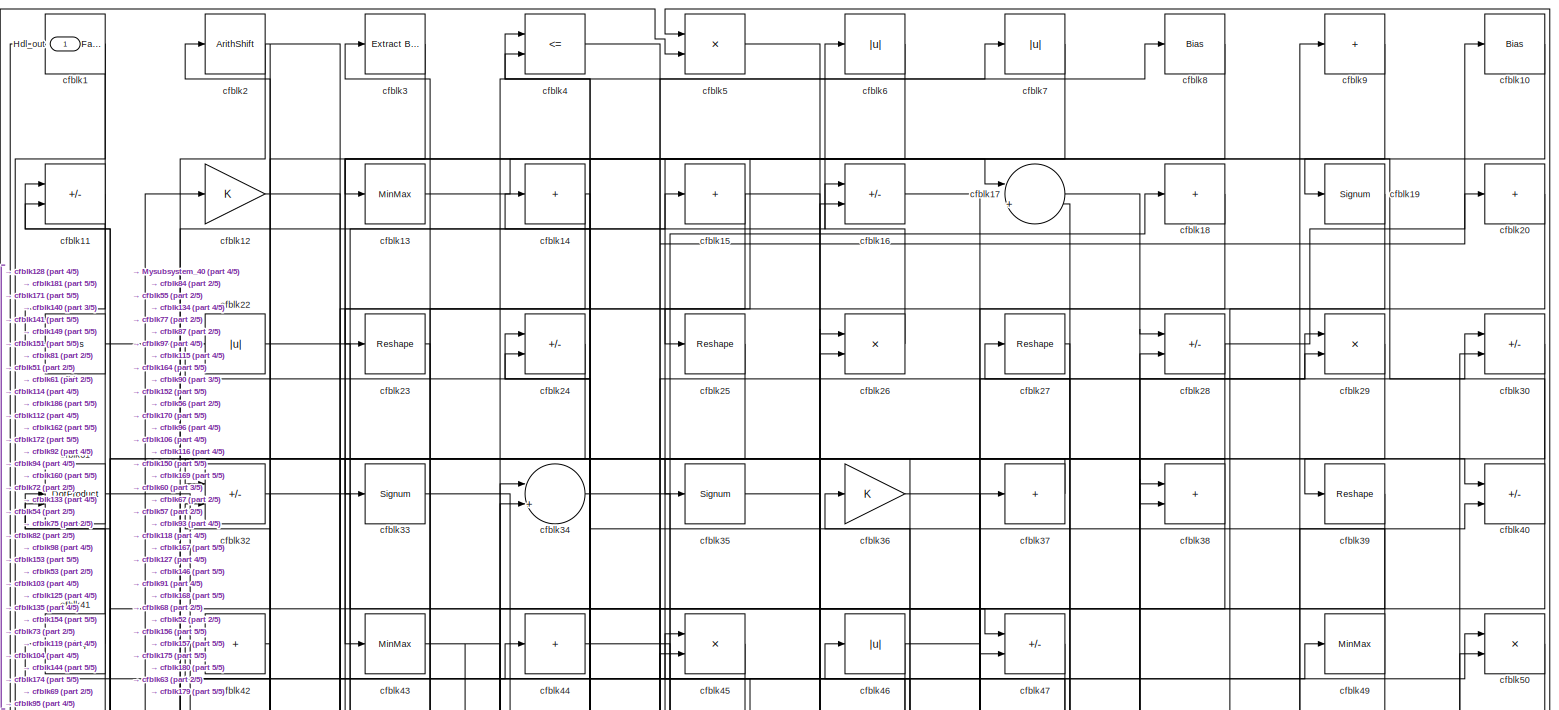
[diagram: root canvas - part 1/5, full width, top band]
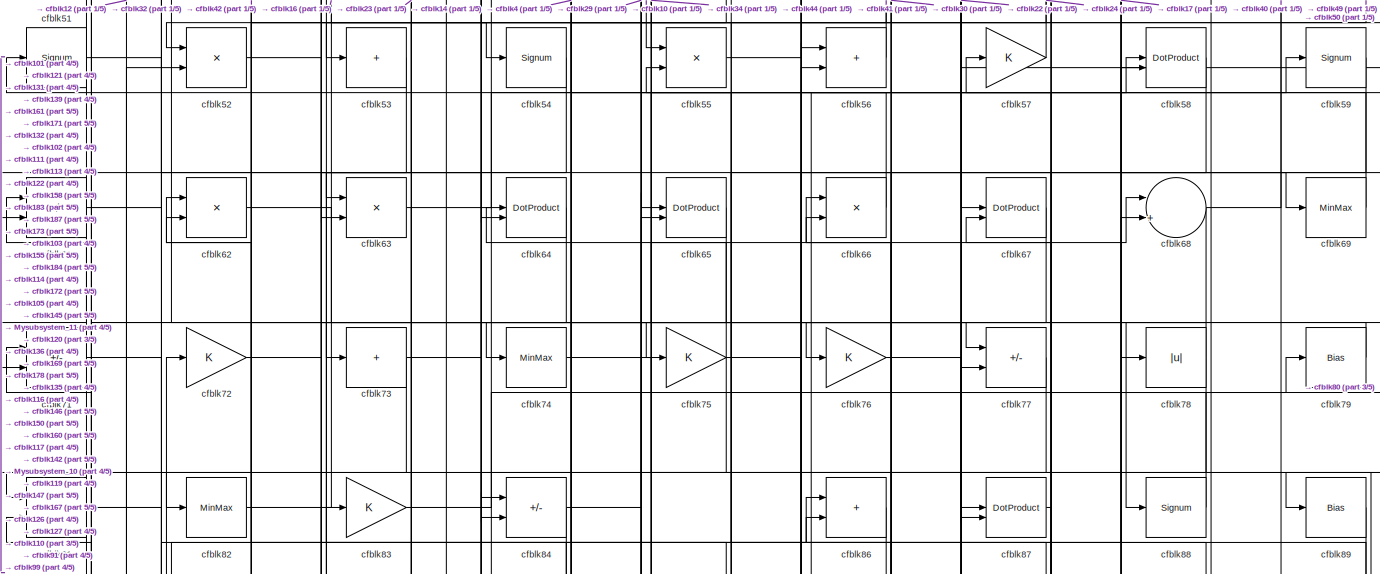
[diagram: root canvas - part 2/5, full width, middle band]
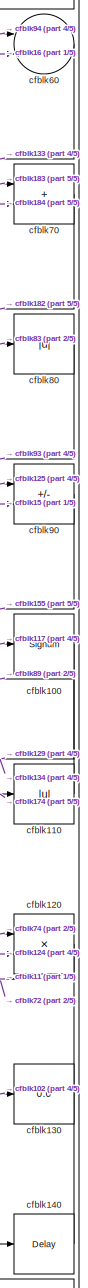
[diagram: root canvas - part 3/5, middle right region]
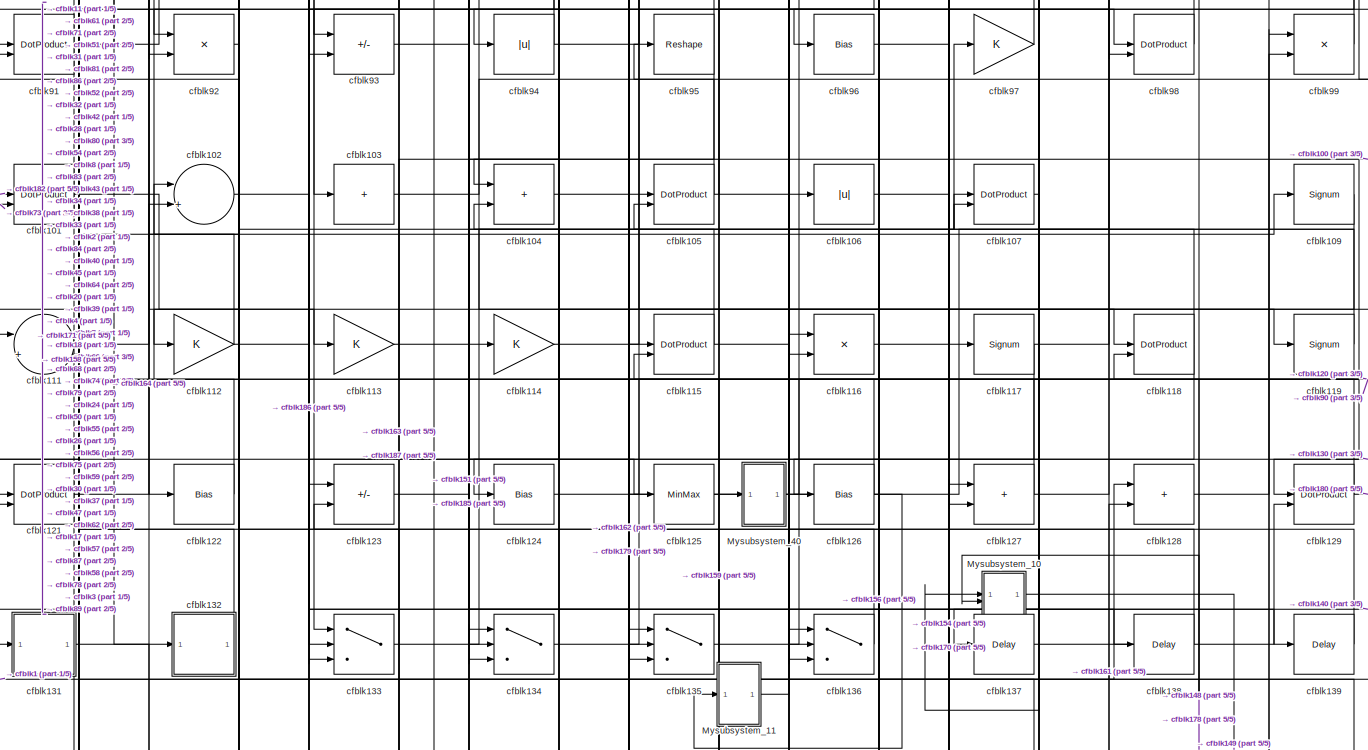
[diagram: root canvas - part 4/5, full width, middle band]
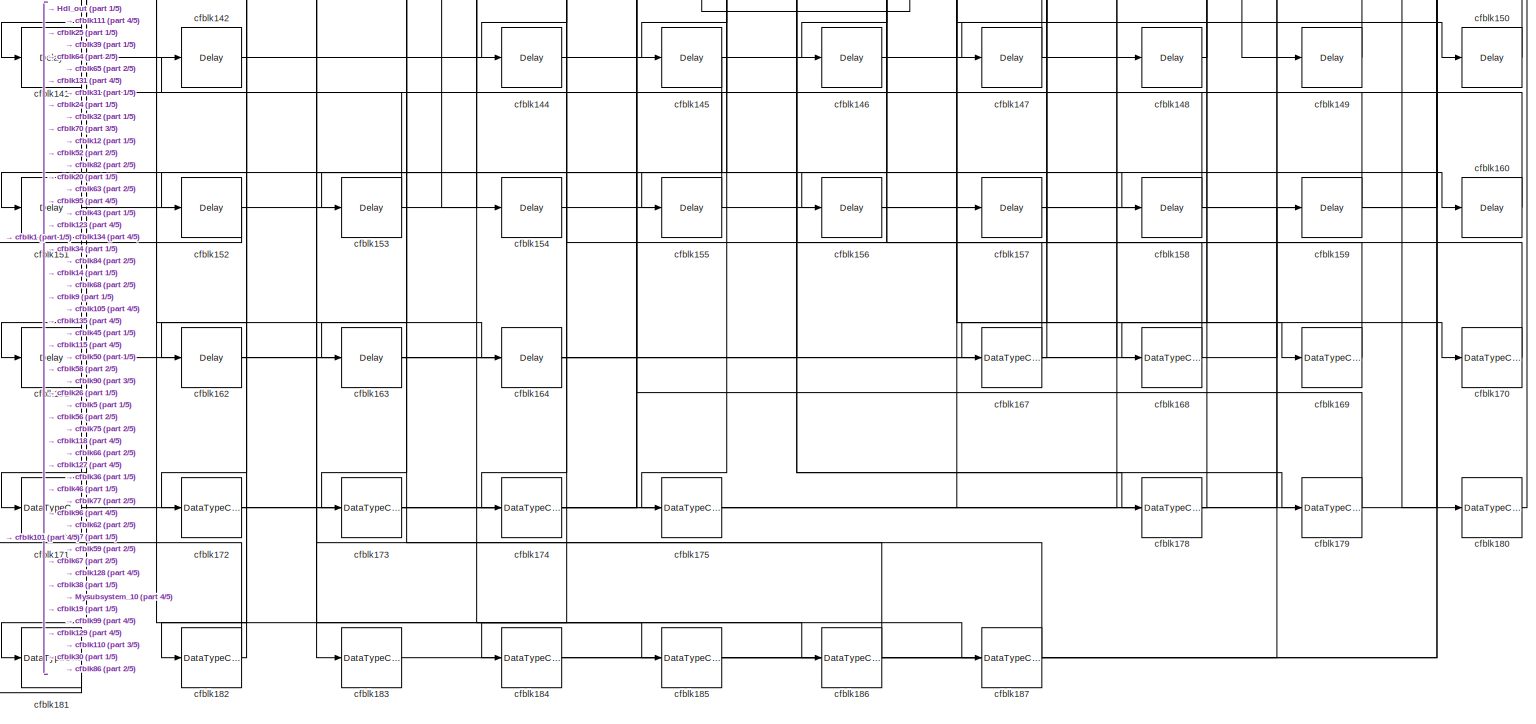
[diagram: root canvas - part 5/5, full width, bottom band]
MODEL slx_bfb61b696e5d
KIND model
CONFIG AbsTol = auto
CONFIG EnableMultiTasking = off
CONFIG FixedStep = auto
CONFIG MaxStep = auto
CONFIG MinStep = auto
CONFIG RelTol = 1e-3
CONFIG SampleTimeConstraint = Unconstrained
CONFIG SolverName = VariableStepAuto
CONFIG StartTime = 0.0
CONFIG StopTime = 10.0
BLOCK [Outport] Hdl_out
  OutDataTypeStr = uint8
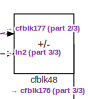
[diagram: Mysubsystem_10 - part 1/3, top center region]
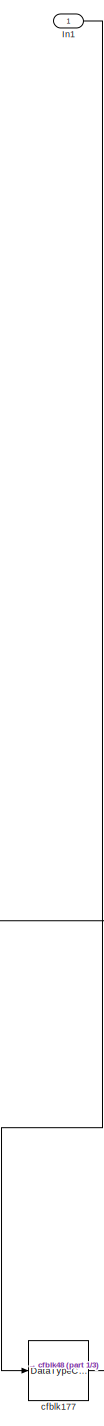
[diagram: Mysubsystem_10 - part 2/3, central region]
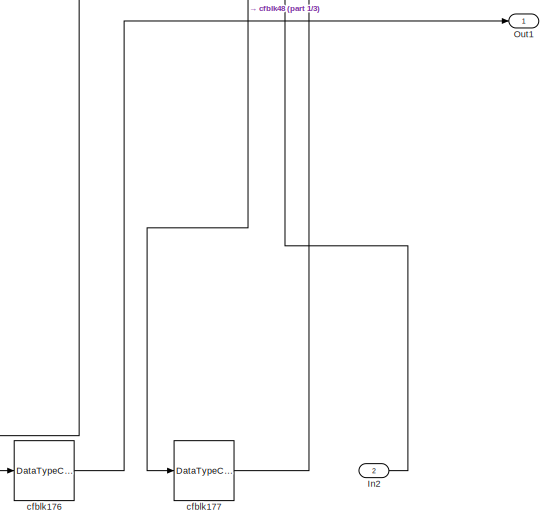
[diagram: Mysubsystem_10 - part 3/3, full width, bottom band]
BLOCK [SubSystem] Mysubsystem_10
  RTWFcnName = Mysubsystem_10
  RTWFcnNameOpts = User specified
  RTWFileNameOpts = Use function name
  RTWSystemCode = Reusable function
  TreatAsAtomicUnit = on
BLOCK [Inport] Mysubsystem_10/In1
BLOCK [Inport] Mysubsystem_10/In2
  Port = 2
BLOCK [Outport] Mysubsystem_10/Out1
BLOCK [DataTypeConversion] Mysubsystem_10/cfblk176
  OutDataTypeStr = uint8
  RndMeth = Floor
  SaturateOnIntegerOverflow = off
BLOCK [DataTypeConversion] Mysubsystem_10/cfblk177
  OutDataTypeStr = uint8
  RndMeth = Floor
  SaturateOnIntegerOverflow = off
BLOCK [Sum] Mysubsystem_10/cfblk48
  IconShape = rectangular
  Inputs = +-
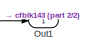
[diagram: Mysubsystem_11 - part 1/2, top center region]
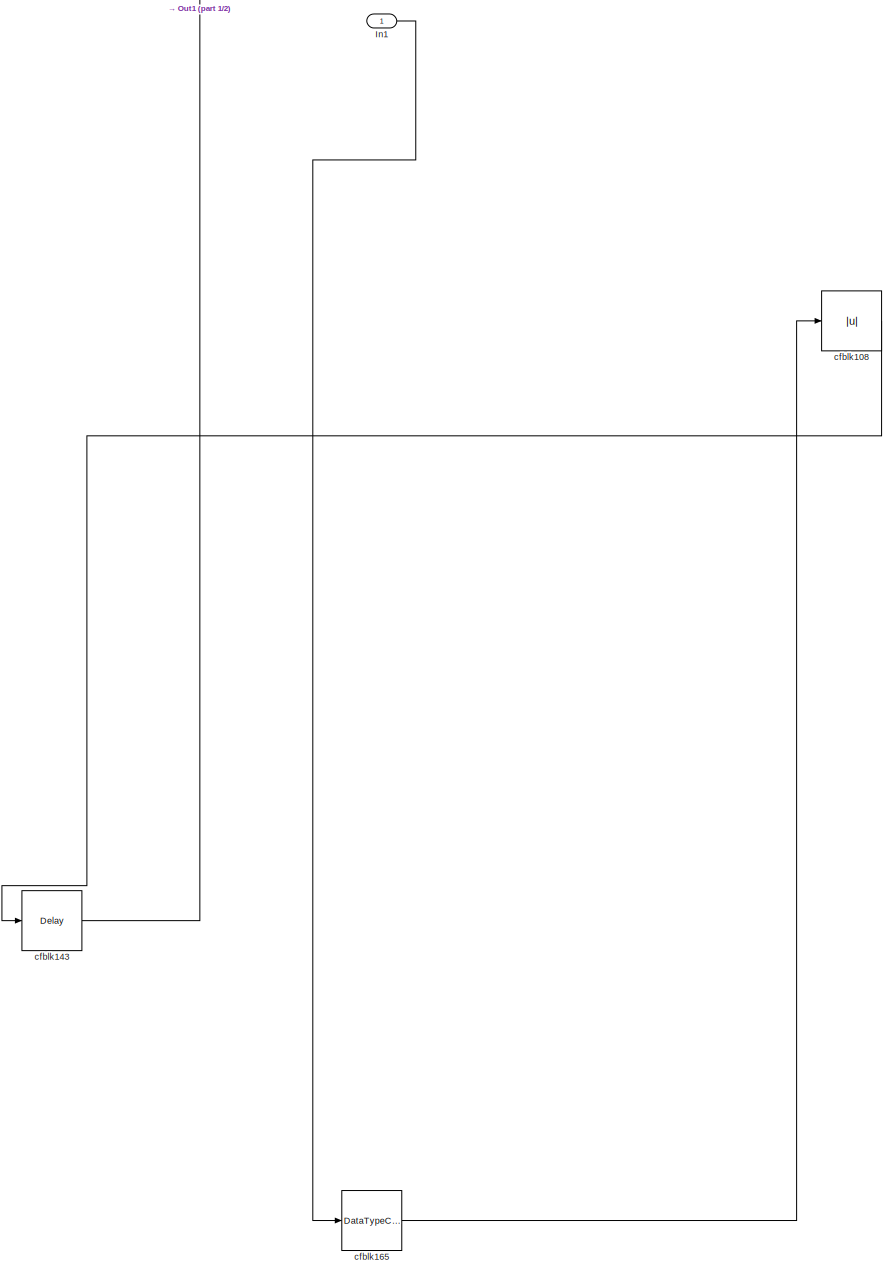
[diagram: Mysubsystem_11 - part 2/2, most of the canvas]
BLOCK [SubSystem] Mysubsystem_11
  RTWFcnName = Mysubsystem_11
  RTWFcnNameOpts = User specified
  RTWFileNameOpts = Use function name
  RTWSystemCode = Reusable function
  TreatAsAtomicUnit = on
BLOCK [Inport] Mysubsystem_11/In1
BLOCK [Outport] Mysubsystem_11/Out1
BLOCK [Abs] Mysubsystem_11/cfblk108
  SaturateOnIntegerOverflow = off
BLOCK [Delay] Mysubsystem_11/cfblk143
  InputPortMap = u0
  SampleTime = 1
BLOCK [DataTypeConversion] Mysubsystem_11/cfblk165
  OutDataTypeStr = uint8
  RndMeth = Floor
  SaturateOnIntegerOverflow = off
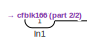
[diagram: Mysubsystem_40 - part 1/2, top left region]
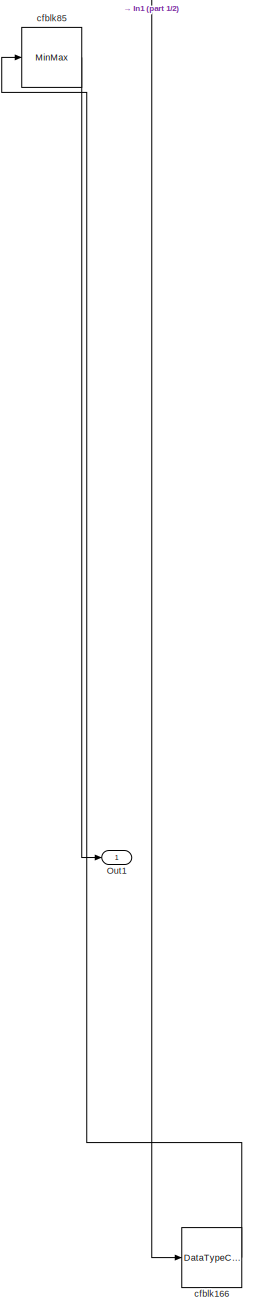
[diagram: Mysubsystem_40 - part 2/2, full width, bottom band]
BLOCK [SubSystem] Mysubsystem_40
  RTWFcnName = Mysubsystem_40
  RTWFcnNameOpts = User specified
  RTWFileNameOpts = Use function name
  RTWSystemCode = Reusable function
  TreatAsAtomicUnit = on
BLOCK [Inport] Mysubsystem_40/In1
BLOCK [Outport] Mysubsystem_40/Out1
BLOCK [DataTypeConversion] Mysubsystem_40/cfblk166
  OutDataTypeStr = uint8
  RndMeth = Floor
  SaturateOnIntegerOverflow = off
BLOCK [MinMax] Mysubsystem_40/cfblk85
BLOCK [Reference] cfblk1  REF=hdlsllib/Logic and Bit
Operations/Detect Fall
Nonpositive
  SourceBlock = hdlsllib/Logic and Bit\nOperations/Detect Fall\nNonpositive
  SourceType = Detect Fall Nonpositive
BLOCK [Bias] cfblk10
  Bias = 0.0
  SaturateOnIntegerOverflow = off
BLOCK [Signum] cfblk100
BLOCK [DotProduct] cfblk101
  OutDataTypeStr = uint8
BLOCK [Sum] cfblk102
  Inputs = |++
  OutDataTypeStr = uint8
BLOCK [Sum] cfblk103
  IconShape = rectangular
  Inputs = +
  OutDataTypeStr = uint8
BLOCK [Sum] cfblk104
  IconShape = rectangular
  OutDataTypeStr = uint8
BLOCK [DotProduct] cfblk105
  OutDataTypeStr = uint8
BLOCK [Abs] cfblk106
  OutDataTypeStr = uint8
  SaturateOnIntegerOverflow = off
BLOCK [DotProduct] cfblk107
  OutDataTypeStr = uint8
BLOCK [Signum] cfblk109
BLOCK [Sum] cfblk11
  IconShape = rectangular
  Inputs = +-
  OutDataTypeStr = uint8
BLOCK [Abs] cfblk110
  OutDataTypeStr = uint8
  SaturateOnIntegerOverflow = off
BLOCK [Sum] cfblk111
  Inputs = |++
  OutDataTypeStr = uint8
BLOCK [Gain] cfblk112
  OutDataTypeStr = uint8
BLOCK [Gain] cfblk113
  OutDataTypeStr = uint8
BLOCK [Gain] cfblk114
  OutDataTypeStr = uint8
BLOCK [DotProduct] cfblk115
  OutDataTypeStr = uint8
BLOCK [Product] cfblk116
  Inputs = */
  OutDataTypeStr = uint8
  RndMeth = Zero
  SaturateOnIntegerOverflow = on
BLOCK [Signum] cfblk117
BLOCK [DotProduct] cfblk118
  OutDataTypeStr = uint8
BLOCK [Signum] cfblk119
BLOCK [Gain] cfblk12
  OutDataTypeStr = uint8
BLOCK [Product] cfblk120
  Inputs = */
  OutDataTypeStr = uint8
  RndMeth = Zero
  SaturateOnIntegerOverflow = on
BLOCK [DotProduct] cfblk121
  OutDataTypeStr = uint8
BLOCK [Bias] cfblk122
  Bias = 0.0
  SaturateOnIntegerOverflow = off
BLOCK [Sum] cfblk123
  IconShape = rectangular
  Inputs = +-
  OutDataTypeStr = uint8
BLOCK [Bias] cfblk124
  Bias = 0.0
  SaturateOnIntegerOverflow = off
BLOCK [MinMax] cfblk125
  OutDataTypeStr = uint8
BLOCK [Bias] cfblk126
  Bias = 0.0
  SaturateOnIntegerOverflow = off
BLOCK [Sum] cfblk127
  IconShape = rectangular
  OutDataTypeStr = uint8
BLOCK [Sum] cfblk128
  IconShape = rectangular
  OutDataTypeStr = uint8
BLOCK [DotProduct] cfblk129
  OutDataTypeStr = uint8
BLOCK [MinMax] cfblk13
  OutDataTypeStr = uint8
BLOCK [Display] cfblk130
  Decimation = 1
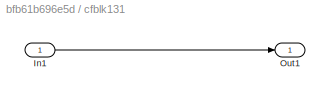
BLOCK [SubSystem] cfblk131
  LibrarySourceBlock = hdlsllib/Ports &\nSubsystems/Subsystem
BLOCK [Inport] cfblk131/In1
BLOCK [Outport] cfblk131/Out1
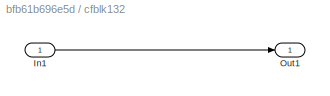
BLOCK [SubSystem] cfblk132
  LibrarySourceBlock = hdlsllib/Ports &\nSubsystems/Subsystem
BLOCK [Inport] cfblk132/In1
BLOCK [Outport] cfblk132/Out1
BLOCK [Switch] cfblk133
  InputSameDT = off
  OutDataTypeStr = uint8
  SaturateOnIntegerOverflow = off
BLOCK [Switch] cfblk134
  InputSameDT = off
  OutDataTypeStr = uint8
  SaturateOnIntegerOverflow = off
BLOCK [Switch] cfblk135
  InputSameDT = off
  OutDataTypeStr = uint8
  SaturateOnIntegerOverflow = off
BLOCK [Switch] cfblk136
  InputSameDT = off
  OutDataTypeStr = uint8
  SaturateOnIntegerOverflow = off
BLOCK [Delay] cfblk137
  InputPortMap = u0
  SampleTime = 1
BLOCK [Delay] cfblk138
  InputPortMap = u0
  SampleTime = 1
BLOCK [Delay] cfblk139
  InputPortMap = u0
  SampleTime = 1
BLOCK [Sum] cfblk14
  IconShape = rectangular
  Inputs = +
  OutDataTypeStr = uint8
BLOCK [Delay] cfblk140
  InputPortMap = u0
  SampleTime = 1
BLOCK [Delay] cfblk141
  InputPortMap = u0
  SampleTime = 1
BLOCK [Delay] cfblk142
  InputPortMap = u0
  SampleTime = 1
BLOCK [Delay] cfblk144
  InputPortMap = u0
  SampleTime = 1
BLOCK [Delay] cfblk145
  InputPortMap = u0
  SampleTime = 1
BLOCK [Delay] cfblk146
  InputPortMap = u0
  SampleTime = 1
BLOCK [Delay] cfblk147
  InputPortMap = u0
  SampleTime = 1
BLOCK [Delay] cfblk148
  InputPortMap = u0
  SampleTime = 1
BLOCK [Delay] cfblk149
  InputPortMap = u0
  SampleTime = 1
BLOCK [Sum] cfblk15
  IconShape = rectangular
  Inputs = +
  OutDataTypeStr = uint8
BLOCK [Delay] cfblk150
  InputPortMap = u0
  SampleTime = 1
BLOCK [Delay] cfblk151
  InputPortMap = u0
  SampleTime = 1
BLOCK [Delay] cfblk152
  InputPortMap = u0
  SampleTime = 1
BLOCK [Delay] cfblk153
  InputPortMap = u0
  SampleTime = 1
BLOCK [Delay] cfblk154
  InputPortMap = u0
  SampleTime = 1
BLOCK [Delay] cfblk155
  InputPortMap = u0
  SampleTime = 1
BLOCK [Delay] cfblk156
  InputPortMap = u0
  SampleTime = 1
BLOCK [Delay] cfblk157
  InputPortMap = u0
  SampleTime = 1
BLOCK [Delay] cfblk158
  InputPortMap = u0
  SampleTime = 1
BLOCK [Delay] cfblk159
  InputPortMap = u0
  SampleTime = 1
BLOCK [Sum] cfblk16
  IconShape = rectangular
  Inputs = +-
  OutDataTypeStr = uint8
BLOCK [Delay] cfblk160
  InputPortMap = u0
  SampleTime = 1
BLOCK [Delay] cfblk161
  InputPortMap = u0
  SampleTime = 1
BLOCK [Delay] cfblk162
  InputPortMap = u0
  SampleTime = 1
BLOCK [Delay] cfblk163
  InputPortMap = u0
  SampleTime = 1
BLOCK [Delay] cfblk164
  InputPortMap = u0
  SampleTime = 1
BLOCK [DataTypeConversion] cfblk167
  OutDataTypeStr = uint8
  RndMeth = Floor
  SaturateOnIntegerOverflow = off
BLOCK [DataTypeConversion] cfblk168
  OutDataTypeStr = uint8
  RndMeth = Floor
  SaturateOnIntegerOverflow = off
BLOCK [DataTypeConversion] cfblk169
  OutDataTypeStr = uint8
  RndMeth = Floor
  SaturateOnIntegerOverflow = off
BLOCK [Sum] cfblk17
  Inputs = |++
  OutDataTypeStr = uint8
BLOCK [DataTypeConversion] cfblk170
  OutDataTypeStr = uint8
  RndMeth = Floor
  SaturateOnIntegerOverflow = off
BLOCK [DataTypeConversion] cfblk171
  OutDataTypeStr = uint8
  RndMeth = Floor
  SaturateOnIntegerOverflow = off
BLOCK [DataTypeConversion] cfblk172
  OutDataTypeStr = uint8
  RndMeth = Floor
  SaturateOnIntegerOverflow = off
BLOCK [DataTypeConversion] cfblk173
  OutDataTypeStr = uint8
  RndMeth = Floor
  SaturateOnIntegerOverflow = off
BLOCK [DataTypeConversion] cfblk174
  OutDataTypeStr = uint8
  RndMeth = Floor
  SaturateOnIntegerOverflow = off
BLOCK [DataTypeConversion] cfblk175
  OutDataTypeStr = uint8
  RndMeth = Floor
  SaturateOnIntegerOverflow = off
BLOCK [DataTypeConversion] cfblk178
  OutDataTypeStr = uint8
  RndMeth = Floor
  SaturateOnIntegerOverflow = off
BLOCK [DataTypeConversion] cfblk179
  OutDataTypeStr = uint8
  RndMeth = Floor
  SaturateOnIntegerOverflow = off
BLOCK [Sum] cfblk18
  IconShape = rectangular
  Inputs = +
  OutDataTypeStr = uint8
BLOCK [DataTypeConversion] cfblk180
  OutDataTypeStr = uint8
  RndMeth = Floor
  SaturateOnIntegerOverflow = off
BLOCK [DataTypeConversion] cfblk181
  OutDataTypeStr = uint8
  RndMeth = Floor
  SaturateOnIntegerOverflow = off
BLOCK [DataTypeConversion] cfblk182
  OutDataTypeStr = uint8
  RndMeth = Floor
  SaturateOnIntegerOverflow = off
BLOCK [DataTypeConversion] cfblk183
  OutDataTypeStr = uint8
  RndMeth = Floor
  SaturateOnIntegerOverflow = off
BLOCK [DataTypeConversion] cfblk184
  OutDataTypeStr = uint8
  RndMeth = Floor
  SaturateOnIntegerOverflow = off
BLOCK [DataTypeConversion] cfblk185
  OutDataTypeStr = uint8
  RndMeth = Floor
  SaturateOnIntegerOverflow = off
BLOCK [DataTypeConversion] cfblk186
  OutDataTypeStr = uint8
  RndMeth = Floor
  SaturateOnIntegerOverflow = off
BLOCK [DataTypeConversion] cfblk187
  OutDataTypeStr = uint8
  RndMeth = Floor
  SaturateOnIntegerOverflow = off
BLOCK [Signum] cfblk19
BLOCK [ArithShift] cfblk2
  BitShiftNumber = 8
  InputPortMap = u0
BLOCK [Sum] cfblk20
  IconShape = rectangular
  Inputs = +
  OutDataTypeStr = uint8
BLOCK [Bias] cfblk21
  Bias = 0.0
  SaturateOnIntegerOverflow = off
BLOCK [Abs] cfblk22
  OutDataTypeStr = uint8
  SaturateOnIntegerOverflow = off
BLOCK [Reshape] cfblk23
BLOCK [Sum] cfblk24
  IconShape = rectangular
  Inputs = +-
  OutDataTypeStr = uint8
BLOCK [Reshape] cfblk25
BLOCK [Product] cfblk26
  Inputs = */
  OutDataTypeStr = uint8
  RndMeth = Zero
  SaturateOnIntegerOverflow = on
BLOCK [Reshape] cfblk27
BLOCK [Sum] cfblk28
  IconShape = rectangular
  Inputs = +-
  OutDataTypeStr = uint8
BLOCK [Product] cfblk29
  Inputs = */
  OutDataTypeStr = uint8
  RndMeth = Zero
  SaturateOnIntegerOverflow = on
BLOCK [Reference] cfblk3  REF=simulink/Logic and Bit
Operations/Extract Bits
  LibrarySourceBlock = hdlsllib/Logic and Bit\nOperations/Extract Bits
  SourceBlock = simulink/Logic and Bit\nOperations/Extract Bits
  SourceType = Extract Bits
BLOCK [Sum] cfblk30
  IconShape = rectangular
  Inputs = +-
  OutDataTypeStr = uint8
BLOCK [DotProduct] cfblk31
  OutDataTypeStr = uint8
BLOCK [Sum] cfblk32
  IconShape = rectangular
  Inputs = +-
  OutDataTypeStr = uint8
BLOCK [Signum] cfblk33
BLOCK [Sum] cfblk34
  Inputs = |++
  OutDataTypeStr = uint8
BLOCK [Signum] cfblk35
BLOCK [Gain] cfblk36
  OutDataTypeStr = uint8
BLOCK [Sum] cfblk37
  IconShape = rectangular
  Inputs = +
  OutDataTypeStr = uint8
BLOCK [Sum] cfblk38
  IconShape = rectangular
  OutDataTypeStr = uint8
BLOCK [Reshape] cfblk39
BLOCK [RelationalOperator] cfblk4
  InputSameDT = off
  Operator = <=
  OutDataTypeStr = boolean
BLOCK [Sum] cfblk40
  IconShape = rectangular
  Inputs = +-
  OutDataTypeStr = uint8
BLOCK [Reshape] cfblk41
BLOCK [Sum] cfblk42
  IconShape = rectangular
  Inputs = +
  OutDataTypeStr = uint8
BLOCK [MinMax] cfblk43
  OutDataTypeStr = uint8
BLOCK [Sum] cfblk44
  IconShape = rectangular
  Inputs = +
  OutDataTypeStr = uint8
BLOCK [Product] cfblk45
  Inputs = */
  OutDataTypeStr = uint8
  RndMeth = Zero
  SaturateOnIntegerOverflow = on
BLOCK [Abs] cfblk46
  OutDataTypeStr = uint8
  SaturateOnIntegerOverflow = off
BLOCK [Sum] cfblk47
  IconShape = rectangular
  Inputs = +-
  OutDataTypeStr = uint8
BLOCK [MinMax] cfblk49
  OutDataTypeStr = uint8
BLOCK [Product] cfblk5
  Inputs = */
  OutDataTypeStr = uint8
  RndMeth = Zero
  SaturateOnIntegerOverflow = on
BLOCK [Product] cfblk50
  Inputs = */
  OutDataTypeStr = uint8
  RndMeth = Zero
  SaturateOnIntegerOverflow = on
BLOCK [Signum] cfblk51
BLOCK [Product] cfblk52
  Inputs = */
  OutDataTypeStr = uint8
  RndMeth = Zero
  SaturateOnIntegerOverflow = on
BLOCK [Sum] cfblk53
  IconShape = rectangular
  Inputs = +
  OutDataTypeStr = uint8
BLOCK [Signum] cfblk54
BLOCK [Product] cfblk55
  Inputs = */
  OutDataTypeStr = uint8
  RndMeth = Zero
  SaturateOnIntegerOverflow = on
BLOCK [Sum] cfblk56
  IconShape = rectangular
  OutDataTypeStr = uint8
BLOCK [Gain] cfblk57
  OutDataTypeStr = uint8
BLOCK [DotProduct] cfblk58
  OutDataTypeStr = uint8
BLOCK [Signum] cfblk59
BLOCK [Abs] cfblk6
  OutDataTypeStr = uint8
  SaturateOnIntegerOverflow = off
BLOCK [Sum] cfblk60
  Inputs = |++
  OutDataTypeStr = uint8
BLOCK [Sum] cfblk61
  IconShape = rectangular
  Inputs = +-
  OutDataTypeStr = uint8
BLOCK [Product] cfblk62
  Inputs = */
  OutDataTypeStr = uint8
  RndMeth = Zero
  SaturateOnIntegerOverflow = on
BLOCK [Product] cfblk63
  Inputs = */
  OutDataTypeStr = uint8
  RndMeth = Zero
  SaturateOnIntegerOverflow = on
BLOCK [DotProduct] cfblk64
  OutDataTypeStr = uint8
BLOCK [DotProduct] cfblk65
  OutDataTypeStr = uint8
BLOCK [Product] cfblk66
  Inputs = */
  OutDataTypeStr = uint8
  RndMeth = Zero
  SaturateOnIntegerOverflow = on
BLOCK [DotProduct] cfblk67
  OutDataTypeStr = uint8
BLOCK [Sum] cfblk68
  Inputs = |++
  OutDataTypeStr = uint8
BLOCK [MinMax] cfblk69
  OutDataTypeStr = uint8
BLOCK [Abs] cfblk7
  OutDataTypeStr = uint8
  SaturateOnIntegerOverflow = off
BLOCK [Sum] cfblk70
  IconShape = rectangular
  OutDataTypeStr = uint8
BLOCK [Sum] cfblk71
  IconShape = rectangular
  Inputs = +-
  OutDataTypeStr = uint8
BLOCK [Gain] cfblk72
  OutDataTypeStr = uint8
BLOCK [Sum] cfblk73
  IconShape = rectangular
  Inputs = +
  OutDataTypeStr = uint8
BLOCK [MinMax] cfblk74
  OutDataTypeStr = uint8
BLOCK [Gain] cfblk75
  OutDataTypeStr = uint8
BLOCK [Gain] cfblk76
  OutDataTypeStr = uint8
BLOCK [Sum] cfblk77
  IconShape = rectangular
  Inputs = +-
  OutDataTypeStr = uint8
BLOCK [Abs] cfblk78
  OutDataTypeStr = uint8
  SaturateOnIntegerOverflow = off
BLOCK [Bias] cfblk79
  Bias = 0.0
  SaturateOnIntegerOverflow = off
BLOCK [Bias] cfblk8
  Bias = 0.0
  SaturateOnIntegerOverflow = off
BLOCK [Abs] cfblk80
  OutDataTypeStr = uint8
  SaturateOnIntegerOverflow = off
BLOCK [Sum] cfblk81
  IconShape = rectangular
  OutDataTypeStr = uint8
BLOCK [MinMax] cfblk82
  OutDataTypeStr = uint8
BLOCK [Gain] cfblk83
  OutDataTypeStr = uint8
BLOCK [Sum] cfblk84
  IconShape = rectangular
  Inputs = +-
  OutDataTypeStr = uint8
BLOCK [Sum] cfblk86
  IconShape = rectangular
  OutDataTypeStr = uint8
BLOCK [DotProduct] cfblk87
  OutDataTypeStr = uint8
BLOCK [Signum] cfblk88
BLOCK [Bias] cfblk89
  Bias = 0.0
  SaturateOnIntegerOverflow = off
BLOCK [Sum] cfblk9
  IconShape = rectangular
  Inputs = +
  OutDataTypeStr = uint8
BLOCK [Sum] cfblk90
  IconShape = rectangular
  Inputs = +-
  OutDataTypeStr = uint8
BLOCK [DotProduct] cfblk91
  OutDataTypeStr = uint8
BLOCK [Product] cfblk92
  Inputs = */
  OutDataTypeStr = uint8
  RndMeth = Zero
  SaturateOnIntegerOverflow = on
BLOCK [Sum] cfblk93
  IconShape = rectangular
  Inputs = +-
  OutDataTypeStr = uint8
BLOCK [Abs] cfblk94
  OutDataTypeStr = uint8
  SaturateOnIntegerOverflow = off
BLOCK [Reshape] cfblk95
BLOCK [Bias] cfblk96
  Bias = 0.0
  SaturateOnIntegerOverflow = off
BLOCK [Gain] cfblk97
  OutDataTypeStr = uint8
BLOCK [DotProduct] cfblk98
  OutDataTypeStr = uint8
BLOCK [Product] cfblk99
  Inputs = */
  OutDataTypeStr = uint8
  RndMeth = Zero
  SaturateOnIntegerOverflow = on
LINE Mysubsystem_10/In1:1 -> Mysubsystem_10/cfblk177:1
LINE Mysubsystem_10/In2:1 -> Mysubsystem_10/cfblk48:2
LINE Mysubsystem_10/cfblk176:1 -> Mysubsystem_10/Out1:1
LINE Mysubsystem_10/cfblk177:1 -> Mysubsystem_10/cfblk48:1
LINE Mysubsystem_10/cfblk48:1 -> Mysubsystem_10/cfblk176:1
LINE Mysubsystem_10:1 -> cfblk149:1
LINE Mysubsystem_11/In1:1 -> Mysubsystem_11/cfblk165:1
LINE Mysubsystem_11/cfblk108:1 -> Mysubsystem_11/cfblk143:1
LINE Mysubsystem_11/cfblk143:1 -> Mysubsystem_11/Out1:1
LINE Mysubsystem_11/cfblk165:1 -> Mysubsystem_11/cfblk108:1
LINE Mysubsystem_11:1 -> cfblk56:2
LINE Mysubsystem_40/In1:1 -> Mysubsystem_40/cfblk166:1
LINE Mysubsystem_40/cfblk166:1 -> Mysubsystem_40/cfblk85:1
LINE Mysubsystem_40/cfblk85:1 -> Mysubsystem_40/Out1:1
LINE Mysubsystem_40:1 -> Mysubsystem_11:1
NET cfblk100:1 -> cfblk129:1, cfblk134:3
LINE cfblk101:1 -> cfblk118:1
NET cfblk102:1 -> cfblk130:1, cfblk140:1
NET cfblk103:1 -> cfblk34:1, cfblk58:2, cfblk78:1
NET cfblk104:1 -> cfblk20:1, cfblk7:1
NET cfblk105:1 -> cfblk106:1, cfblk55:2, cfblk95:1
LINE cfblk106:1 -> cfblk47:2
LINE cfblk107:1 -> cfblk137:1
NET cfblk109:1 -> cfblk105:2, cfblk124:1
NET cfblk10:1 -> cfblk25:1, cfblk55:1
LINE cfblk110:1 -> cfblk89:1
LINE cfblk111:1 -> cfblk86:1
NET cfblk112:1 -> cfblk11:1, cfblk138:1
NET cfblk113:1 -> cfblk107:2, cfblk139:1
NET cfblk114:1 -> cfblk68:1, cfblk79:1
NET cfblk115:1 -> cfblk26:1, cfblk91:2
LINE cfblk116:1 -> cfblk37:1
NET cfblk117:1 -> cfblk100:1, cfblk121:2
NET cfblk118:1 -> cfblk156:1, cfblk17:2
NET cfblk119:1 -> cfblk57:1, cfblk97:1
LINE cfblk11:1 -> cfblk21:1
LINE cfblk120:1 -> cfblk72:1
LINE cfblk121:1 -> cfblk109:1
LINE cfblk122:1 -> cfblk71:1
LINE cfblk123:1 -> cfblk185:1
LINE cfblk124:1 -> cfblk120:2
LINE cfblk125:1 -> cfblk90:1
NET cfblk126:1 -> cfblk64:1, cfblk68:2
NET cfblk127:1 -> cfblk30:1, cfblk83:1
LINE cfblk128:1 -> cfblk99:1
NET cfblk129:1 -> cfblk104:2, cfblk180:1
LINE cfblk12:1 -> cfblk160:1
LINE cfblk131/In1:1 -> cfblk131/Out1:1
LINE cfblk131:1 -> cfblk164:1
LINE cfblk132/In1:1 -> cfblk132/Out1:1
LINE cfblk132:1 -> cfblk61:1
LINE cfblk133:1 -> cfblk107:1
LINE cfblk134:1 -> cfblk18:1
LINE cfblk135:1 -> cfblk59:1
LINE cfblk136:1 -> cfblk102:1
LINE cfblk137:1 -> cfblk129:2
LINE cfblk138:1 -> cfblk116:1
LINE cfblk139:1 -> cfblk81:2
LINE cfblk13:1 -> cfblk17:1
LINE cfblk140:1 -> cfblk11:2
LINE cfblk141:1 -> cfblk34:2
LINE cfblk142:1 -> cfblk77:2
LINE cfblk144:1 -> cfblk45:2
LINE cfblk145:1 -> cfblk181:1
LINE cfblk146:1 -> cfblk38:1
LINE cfblk147:1 -> cfblk62:2
LINE cfblk148:1 -> cfblk118:2
LINE cfblk149:1 -> cfblk31:2
NET cfblk14:1 -> cfblk144:1, cfblk63:2
LINE cfblk150:1 -> cfblk86:2
LINE cfblk151:1 -> cfblk134:1
LINE cfblk152:1 -> cfblk1:1
LINE cfblk153:1 -> cfblk32:2
LINE cfblk154:1 -> cfblk127:1
LINE cfblk155:1 -> cfblk84:1
LINE cfblk156:1 -> cfblk50:2
LINE cfblk157:1 -> cfblk30:2
LINE cfblk158:1 -> cfblk111:2
LINE cfblk159:1 -> cfblk115:2
NET cfblk15:1 -> cfblk23:1, cfblk90:2
LINE cfblk160:1 -> cfblk66:2
LINE cfblk161:1 -> cfblk128:2
LINE cfblk162:1 -> cfblk105:1
LINE cfblk163:1 -> cfblk99:2
LINE cfblk164:1 -> cfblk26:2
NET cfblk167:1 -> cfblk14:1, cfblk46:1, cfblk67:2
LINE cfblk168:1 -> cfblk27:1
LINE cfblk169:1 -> cfblk56:1
LINE cfblk16:1 -> cfblk60:2
LINE cfblk170:1 -> cfblk36:1
NET cfblk171:1 -> Hdl_out:1, cfblk135:1, cfblk148:1
LINE cfblk172:1 -> cfblk65:1
LINE cfblk173:1 -> cfblk65:2
NET cfblk174:1 -> cfblk110:1, cfblk157:1
LINE cfblk175:1 -> cfblk9:1
LINE cfblk178:1 -> Mysubsystem_10:2
LINE cfblk179:1 -> cfblk115:1
NET cfblk17:1 -> cfblk28:1, cfblk69:1
LINE cfblk180:1 -> cfblk5:1
LINE cfblk181:1 -> cfblk5:2
NET cfblk182:1 -> cfblk101:1, cfblk142:1
LINE cfblk183:1 -> cfblk70:1
LINE cfblk184:1 -> cfblk70:2
LINE cfblk185:1 -> cfblk159:1
LINE cfblk186:1 -> cfblk123:1
LINE cfblk187:1 -> cfblk123:2
LINE cfblk18:1 -> cfblk127:2
LINE cfblk19:1 -> cfblk168:1
LINE cfblk1:1 -> cfblk128:1
LINE cfblk20:1 -> cfblk153:1
NET cfblk21:1 -> cfblk15:1, cfblk38:2
LINE cfblk22:1 -> cfblk67:1
LINE cfblk23:1 -> cfblk53:1
LINE cfblk24:1 -> cfblk162:1
LINE cfblk25:1 -> cfblk141:1
LINE cfblk26:1 -> cfblk6:1
LINE cfblk27:1 -> cfblk167:1
NET cfblk28:1 -> cfblk10:1, cfblk133:3
LINE cfblk29:1 -> cfblk39:1
NET cfblk2:1 -> cfblk112:1, cfblk92:2, cfblk98:2
NET cfblk30:1 -> cfblk81:1, cfblk96:1
NET cfblk31:1 -> cfblk114:1, cfblk186:1
NET cfblk32:1 -> cfblk172:1, cfblk54:1, cfblk75:1, cfblk98:1
LINE cfblk33:1 -> cfblk119:1
LINE cfblk34:1 -> cfblk77:1
LINE cfblk35:1 -> cfblk47:1
LINE cfblk36:1 -> cfblk169:1
LINE cfblk37:1 -> cfblk33:1
NET cfblk38:1 -> cfblk134:2, cfblk35:1
NET cfblk39:1 -> cfblk135:2, cfblk151:1
LINE cfblk3:1 -> cfblk13:1
NET cfblk40:1 -> cfblk104:1, cfblk19:1
LINE cfblk41:1 -> cfblk31:1
LINE cfblk42:1 -> cfblk82:1
NET cfblk43:1 -> cfblk125:1, cfblk135:3, cfblk154:1
LINE cfblk44:1 -> cfblk87:2
LINE cfblk45:1 -> cfblk94:1
NET cfblk46:1 -> cfblk150:1, cfblk152:1, cfblk29:2
LINE cfblk47:1 -> cfblk93:1
NET cfblk49:1 -> cfblk22:1, cfblk52:1
NET cfblk4:1 -> Mysubsystem_40:1, cfblk40:1
NET cfblk50:1 -> cfblk175:1, cfblk63:1, cfblk92:1
NET cfblk51:1 -> cfblk12:1, cfblk132:1, cfblk64:2
LINE cfblk52:1 -> cfblk183:1
LINE cfblk53:1 -> cfblk61:2
LINE cfblk54:1 -> cfblk103:1
LINE cfblk55:1 -> cfblk16:2
LINE cfblk56:1 -> cfblk41:1
LINE cfblk57:1 -> cfblk24:2
LINE cfblk58:1 -> cfblk145:1
NET cfblk59:1 -> cfblk136:2, cfblk146:1, cfblk147:1
LINE cfblk5:1 -> cfblk179:1
LINE cfblk60:1 -> cfblk133:2
NET cfblk61:1 -> cfblk50:1, cfblk71:2
LINE cfblk62:1 -> cfblk117:1
NET cfblk63:1 -> cfblk173:1, cfblk58:1
NET cfblk64:1 -> cfblk121:1, cfblk161:1
LINE cfblk65:1 -> cfblk171:1
LINE cfblk66:1 -> cfblk51:1
LINE cfblk67:1 -> cfblk74:1
NET cfblk68:1 -> cfblk184:1, cfblk40:2, cfblk88:1
LINE cfblk69:1 -> cfblk4:1
LINE cfblk6:1 -> cfblk32:1
LINE cfblk70:1 -> cfblk182:1
NET cfblk71:1 -> cfblk102:2, cfblk113:1
LINE cfblk72:1 -> cfblk44:1
NET cfblk73:1 -> cfblk101:2, cfblk49:1
NET cfblk74:1 -> cfblk120:1, cfblk136:1
NET cfblk75:1 -> cfblk131:1, cfblk178:1, cfblk4:2
LINE cfblk76:1 -> cfblk87:1
LINE cfblk77:1 -> cfblk84:2
NET cfblk78:1 -> cfblk126:1, cfblk76:1
LINE cfblk79:1 -> cfblk73:1
LINE cfblk7:1 -> cfblk43:1
LINE cfblk80:1 -> cfblk93:2
LINE cfblk81:1 -> cfblk122:1
NET cfblk82:1 -> cfblk158:1, cfblk16:1, cfblk187:1
LINE cfblk83:1 -> cfblk80:1
NET cfblk84:1 -> cfblk111:1, cfblk29:1
LINE cfblk86:1 -> cfblk116:2
LINE cfblk87:1 -> Mysubsystem_10:1
LINE cfblk88:1 -> cfblk66:1
NET cfblk89:1 -> cfblk136:3, cfblk91:1
LINE cfblk8:1 -> cfblk133:1
LINE cfblk90:1 -> cfblk155:1
NET cfblk91:1 -> cfblk28:2, cfblk52:2
LINE cfblk92:1 -> cfblk42:1
LINE cfblk93:1 -> cfblk8:1
NET cfblk94:1 -> cfblk2:1, cfblk60:1
NET cfblk95:1 -> cfblk163:1, cfblk24:1
LINE cfblk96:1 -> cfblk170:1
LINE cfblk97:1 -> cfblk45:1
LINE cfblk98:1 -> cfblk3:1
LINE cfblk99:1 -> cfblk62:1
LINE cfblk9:1 -> cfblk174:1
note: NET lines group one-source signal fan-out (src -> all destinations, sorted); 1:1 wires keep LINE
